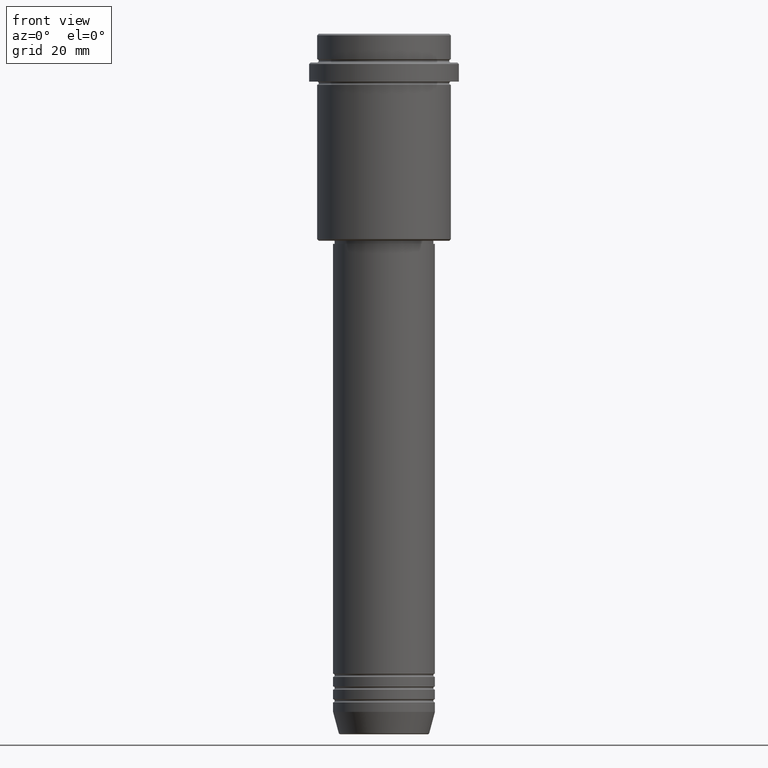
[diagram: clean part render]
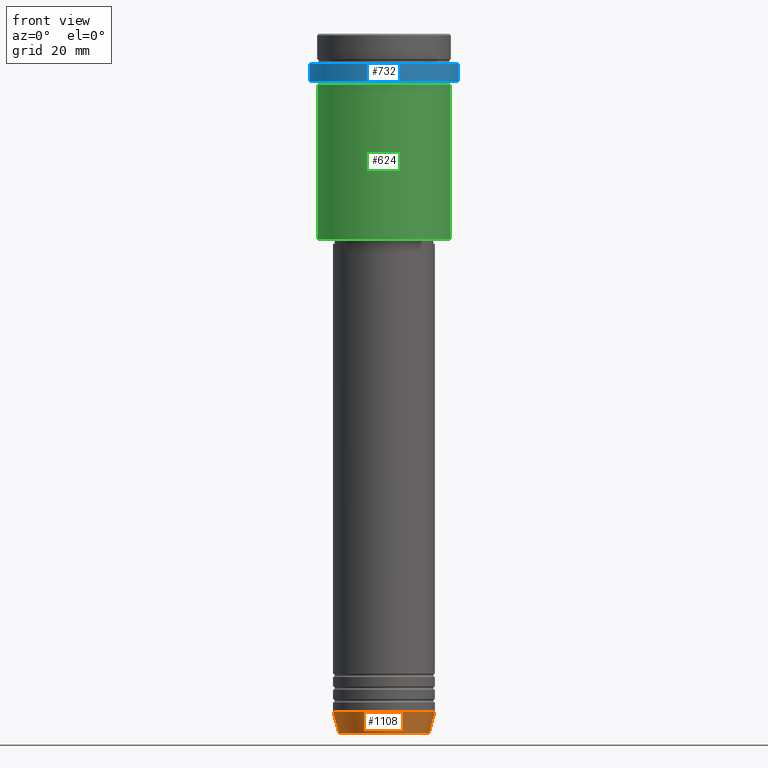
[diagram: same view with three faces highlighted in distinct colors, each labeled with its STEP entity id]
A machine part, front view with three faces highlighted in distinct colors.
Their STEP definitions:

[orange] entity #1108 — the highlighted conical surface has half-angle 15 deg.
#50 = EDGE_LOOP ( 'NONE', ( #1094, #1254, #1383, #1132 ) ) ;
#67 = DIRECTION ( 'NONE',  ( 1.000000000000000000, 0.000000000000000000, 0.000000000000000000 ) ) ;
#138 = VERTEX_POINT ( 'NONE', #427 ) ;
#146 = LINE ( 'NONE', #600, #1126 ) ;
#154 = VERTEX_POINT ( 'NONE', #754 ) ;
#249 = DIRECTION ( 'NONE',  ( 1.000000000000000000, 0.000000000000000000, 0.000000000000000000 ) ) ;
#385 = DIRECTION ( 'NONE',  ( -0.2588190451025205174, 3.169619151431761243E-17, 0.9659258262890684232 ) ) ;
#427 = CARTESIAN_POINT ( 'NONE',  ( -16.00000000000000000, 1.959434878635765131E-15, -213.0000000000000284 ) ) ;
#438 = CARTESIAN_POINT ( 'NONE',  ( 0.000000000000000000, 0.000000000000000000, -213.0000000000000284 ) ) ;
#452 = CIRCLE ( 'NONE', #735, 14.22365507213720548 ) ;
#519 = AXIS2_PLACEMENT_3D ( 'NONE', #997, #893, #249 ) ;
#594 = DIRECTION ( 'NONE',  ( -0.000000000000000000, -0.000000000000000000, 1.000000000000000000 ) ) ;
#600 = CARTESIAN_POINT ( 'NONE',  ( -16.00000000000000000, 1.959434878635765131E-15, -213.0000000000000284 ) ) ;
#602 = VERTEX_POINT ( 'NONE', #675 ) ;
#631 = EDGE_CURVE ( 'NONE', #602, #1181, #1220, .T. ) ;
#671 = CARTESIAN_POINT ( 'NONE',  ( 16.00000000000000000, 0.000000000000000000, -213.0000000000000284 ) ) ;
#675 = CARTESIAN_POINT ( 'NONE',  ( 14.22365507213720548, 0.000000000000000000, -219.6294095225512706 ) ) ;
#695 = DIRECTION ( 'NONE',  ( 0.2588190451025205174, 0.000000000000000000, 0.9659258262890684232 ) ) ;
#735 = AXIS2_PLACEMENT_3D ( 'NONE', #815, #594, #831 ) ;
#754 = CARTESIAN_POINT ( 'NONE',  ( -14.22365507213720548, 1.850665122131324520E-15, -219.6294095225512706 ) ) ;
#782 = AXIS2_PLACEMENT_3D ( 'NONE', #438, #936, #67 ) ;
#815 = CARTESIAN_POINT ( 'NONE',  ( 0.000000000000000000, 0.000000000000000000, -219.6294095225512706 ) ) ;
#821 = CARTESIAN_POINT ( 'NONE',  ( 16.00000000000000000, 0.000000000000000000, -213.0000000000000284 ) ) ;
#831 = DIRECTION ( 'NONE',  ( 1.000000000000000000, 0.000000000000000000, 0.000000000000000000 ) ) ;
#852 = VECTOR ( 'NONE', #695, 1000.000000000000114 ) ;
#893 = DIRECTION ( 'NONE',  ( -0.000000000000000000, -0.000000000000000000, 1.000000000000000000 ) ) ;
#936 = DIRECTION ( 'NONE',  ( -0.000000000000000000, -0.000000000000000000, 1.000000000000000000 ) ) ;
#997 = CARTESIAN_POINT ( 'NONE',  ( 0.000000000000000000, 0.000000000000000000, -213.0000000000000284 ) ) ;
#1074 = CONICAL_SURFACE ( 'NONE', #519, 16.00000000000000000, 0.2617993877991491303 ) ;
#1094 = ORIENTED_EDGE ( 'NONE', *, *, #1205, .F. ) ;
#1108 = ADVANCED_FACE ( 'NONE', ( #1317 ), #1074, .T. ) ;
#1126 = VECTOR ( 'NONE', #385, 1000.000000000000114 ) ;
#1132 = ORIENTED_EDGE ( 'NONE', *, *, #1135, .F. ) ;
#1135 = EDGE_CURVE ( 'NONE', #138, #1181, #1388, .T. ) ;
#1181 = VERTEX_POINT ( 'NONE', #821 ) ;
#1205 = EDGE_CURVE ( 'NONE', #154, #138, #146, .T. ) ;
#1220 = LINE ( 'NONE', #671, #852 ) ;
#1227 = EDGE_CURVE ( 'NONE', #154, #602, #452, .T. ) ;
#1254 = ORIENTED_EDGE ( 'NONE', *, *, #1227, .T. ) ;
#1317 = FACE_OUTER_BOUND ( 'NONE', #50, .T. ) ;
#1383 = ORIENTED_EDGE ( 'NONE', *, *, #631, .T. ) ;
#1388 = CIRCLE ( 'NONE', #782, 16.00000000000000000 ) ;

[blue] entity #732 — the highlighted cylindrical surface (partial cylindrical patch) has radius 23.5 mm, axis along (-0, -0, 1).
#51 = CARTESIAN_POINT ( 'NONE',  ( 0.000000000000000000, 0.000000000000000000, 0.000000000000000000 ) ) ;
#78 = VERTEX_POINT ( 'NONE', #838 ) ;
#150 = VERTEX_POINT ( 'NONE', #656 ) ;
#155 = CIRCLE ( 'NONE', #944, 23.50000000000000355 ) ;
#303 = LINE ( 'NONE', #517, #353 ) ;
#353 = VECTOR ( 'NONE', #1307, 1000.000000000000000 ) ;
#376 = EDGE_CURVE ( 'NONE', #766, #819, #1207, .T. ) ;
#398 = DIRECTION ( 'NONE',  ( -0.000000000000000000, -0.000000000000000000, 1.000000000000000000 ) ) ;
#417 = ORIENTED_EDGE ( 'NONE', *, *, #376, .F. ) ;
#432 = DIRECTION ( 'NONE',  ( 0.000000000000000000, 0.000000000000000000, -1.000000000000000000 ) ) ;
#468 = ORIENTED_EDGE ( 'NONE', *, *, #976, .T. ) ;
#485 = ORIENTED_EDGE ( 'NONE', *, *, #950, .T. ) ;
#517 = CARTESIAN_POINT ( 'NONE',  ( 23.50000000000000000, 0.000000000000000000, 0.000000000000000000 ) ) ;
#538 = CARTESIAN_POINT ( 'NONE',  ( 0.000000000000000000, 0.000000000000000000, -9.499999999999973355 ) ) ;
#608 = CARTESIAN_POINT ( 'NONE',  ( -23.50000000000000000, 2.877919977996280320E-15, -9.499999999999973355 ) ) ;
#611 = VECTOR ( 'NONE', #1104, 1000.000000000000000 ) ;
#615 = CIRCLE ( 'NONE', #1362, 23.50000000000000000 ) ;
#656 = CARTESIAN_POINT ( 'NONE',  ( 23.50000000000000000, 0.000000000000000000, -9.499999999999973355 ) ) ;
#699 = DIRECTION ( 'NONE',  ( 1.000000000000000000, 0.000000000000000000, 0.000000000000000000 ) ) ;
#732 = ADVANCED_FACE ( 'NONE', ( #932 ), #1171, .T. ) ;
#766 = VERTEX_POINT ( 'NONE', #1251 ) ;
#817 = DIRECTION ( 'NONE',  ( -0.000000000000000000, -0.000000000000000000, 1.000000000000000000 ) ) ;
#819 = VERTEX_POINT ( 'NONE', #608 ) ;
#838 = CARTESIAN_POINT ( 'NONE',  ( 23.50000000000000355, 0.000000000000000000, -15.00000000000000178 ) ) ;
#857 = DIRECTION ( 'NONE',  ( 1.000000000000000000, 0.000000000000000000, 0.000000000000000000 ) ) ;
#902 = EDGE_CURVE ( 'NONE', #78, #150, #303, .T. ) ;
#932 = FACE_OUTER_BOUND ( 'NONE', #994, .T. ) ;
#944 = AXIS2_PLACEMENT_3D ( 'NONE', #1177, #398, #857 ) ;
#950 = EDGE_CURVE ( 'NONE', #150, #819, #615, .T. ) ;
#976 = EDGE_CURVE ( 'NONE', #766, #78, #155, .T. ) ;
#994 = EDGE_LOOP ( 'NONE', ( #417, #468, #1069, #485 ) ) ;
#1065 = DIRECTION ( 'NONE',  ( 1.000000000000000000, 0.000000000000000000, 0.000000000000000000 ) ) ;
#1069 = ORIENTED_EDGE ( 'NONE', *, *, #902, .T. ) ;
#1073 = AXIS2_PLACEMENT_3D ( 'NONE', #51, #817, #699 ) ;
#1104 = DIRECTION ( 'NONE',  ( -0.000000000000000000, -0.000000000000000000, 1.000000000000000000 ) ) ;
#1171 = CYLINDRICAL_SURFACE ( 'NONE', #1073, 23.50000000000000000 ) ;
#1177 = CARTESIAN_POINT ( 'NONE',  ( 0.000000000000000000, 0.000000000000000000, -15.00000000000000178 ) ) ;
#1207 = LINE ( 'NONE', #1395, #611 ) ;
#1251 = CARTESIAN_POINT ( 'NONE',  ( -23.50000000000000711, 2.877919977996281109E-15, -15.00000000000000178 ) ) ;
#1307 = DIRECTION ( 'NONE',  ( -0.000000000000000000, -0.000000000000000000, 1.000000000000000000 ) ) ;
#1362 = AXIS2_PLACEMENT_3D ( 'NONE', #538, #432, #1065 ) ;
#1395 = CARTESIAN_POINT ( 'NONE',  ( -23.50000000000000000, 2.877919977996280320E-15, 0.000000000000000000 ) ) ;

[green] entity #624 — the highlighted cylindrical surface (partial cylindrical patch) has radius 21 mm, axis along (-0, -0, 1).
#60 = ORIENTED_EDGE ( 'NONE', *, *, #786, .T. ) ;
#86 = VECTOR ( 'NONE', #1026, 1000.000000000000000 ) ;
#122 = VERTEX_POINT ( 'NONE', #181 ) ;
#159 = VERTEX_POINT ( 'NONE', #776 ) ;
#165 = EDGE_CURVE ( 'NONE', #1092, #159, #991, .T. ) ;
#181 = CARTESIAN_POINT ( 'NONE',  ( 20.99999999999999645, 0.000000000000000000, -16.00000000000000355 ) ) ;
#183 = CARTESIAN_POINT ( 'NONE',  ( 0.000000000000000000, 0.000000000000000000, -64.50000000000002842 ) ) ;
#221 = CARTESIAN_POINT ( 'NONE',  ( -20.99999999999999645, 2.571758278209441267E-15, 0.000000000000000000 ) ) ;
#229 = DIRECTION ( 'NONE',  ( -0.000000000000000000, -0.000000000000000000, 1.000000000000000000 ) ) ;
#234 = CARTESIAN_POINT ( 'NONE',  ( 0.000000000000000000, 0.000000000000000000, 0.000000000000000000 ) ) ;
#269 = LINE ( 'NONE', #1368, #86 ) ;
#355 = AXIS2_PLACEMENT_3D ( 'NONE', #406, #1380, #395 ) ;
#379 = DIRECTION ( 'NONE',  ( -1.000000000000000000, 0.000000000000000000, 0.000000000000000000 ) ) ;
#395 = DIRECTION ( 'NONE',  ( 1.000000000000000000, 0.000000000000000000, 0.000000000000000000 ) ) ;
#406 = CARTESIAN_POINT ( 'NONE',  ( 0.000000000000000000, 0.000000000000000000, -16.00000000000000355 ) ) ;
#505 = ORIENTED_EDGE ( 'NONE', *, *, #1295, .F. ) ;
#522 = DIRECTION ( 'NONE',  ( -0.000000000000000000, -0.000000000000000000, 1.000000000000000000 ) ) ;
#560 = CIRCLE ( 'NONE', #730, 20.99999999999999645 ) ;
#563 = CARTESIAN_POINT ( 'NONE',  ( 20.99999999999999645, 0.000000000000000000, -64.50000000000002842 ) ) ;
#624 = ADVANCED_FACE ( 'NONE', ( #1313 ), #1341, .T. ) ;
#667 = DIRECTION ( 'NONE',  ( 1.000000000000000000, 0.000000000000000000, 0.000000000000000000 ) ) ;
#712 = EDGE_LOOP ( 'NONE', ( #1336, #1120, #60, #505 ) ) ;
#730 = AXIS2_PLACEMENT_3D ( 'NONE', #183, #833, #379 ) ;
#776 = CARTESIAN_POINT ( 'NONE',  ( -20.99999999999999645, 2.571758278209441267E-15, -16.00000000000000355 ) ) ;
#779 = EDGE_CURVE ( 'NONE', #1092, #1373, #560, .T. ) ;
#786 = EDGE_CURVE ( 'NONE', #1373, #122, #269, .T. ) ;
#833 = DIRECTION ( 'NONE',  ( -0.000000000000000000, -0.000000000000000000, 1.000000000000000000 ) ) ;
#991 = LINE ( 'NONE', #221, #1257 ) ;
#1026 = DIRECTION ( 'NONE',  ( -0.000000000000000000, -0.000000000000000000, 1.000000000000000000 ) ) ;
#1092 = VERTEX_POINT ( 'NONE', #1228 ) ;
#1120 = ORIENTED_EDGE ( 'NONE', *, *, #779, .T. ) ;
#1148 = CIRCLE ( 'NONE', #355, 20.99999999999999645 ) ;
#1228 = CARTESIAN_POINT ( 'NONE',  ( -20.99999999999999645, 2.571758278209441267E-15, -64.50000000000002842 ) ) ;
#1257 = VECTOR ( 'NONE', #522, 1000.000000000000000 ) ;
#1295 = EDGE_CURVE ( 'NONE', #159, #122, #1148, .T. ) ;
#1313 = FACE_OUTER_BOUND ( 'NONE', #712, .T. ) ;
#1316 = AXIS2_PLACEMENT_3D ( 'NONE', #234, #229, #667 ) ;
#1336 = ORIENTED_EDGE ( 'NONE', *, *, #165, .F. ) ;
#1341 = CYLINDRICAL_SURFACE ( 'NONE', #1316, 20.99999999999999645 ) ;
#1368 = CARTESIAN_POINT ( 'NONE',  ( 20.99999999999999645, 0.000000000000000000, 0.000000000000000000 ) ) ;
#1373 = VERTEX_POINT ( 'NONE', #563 ) ;
#1380 = DIRECTION ( 'NONE',  ( -0.000000000000000000, -0.000000000000000000, 1.000000000000000000 ) ) ;